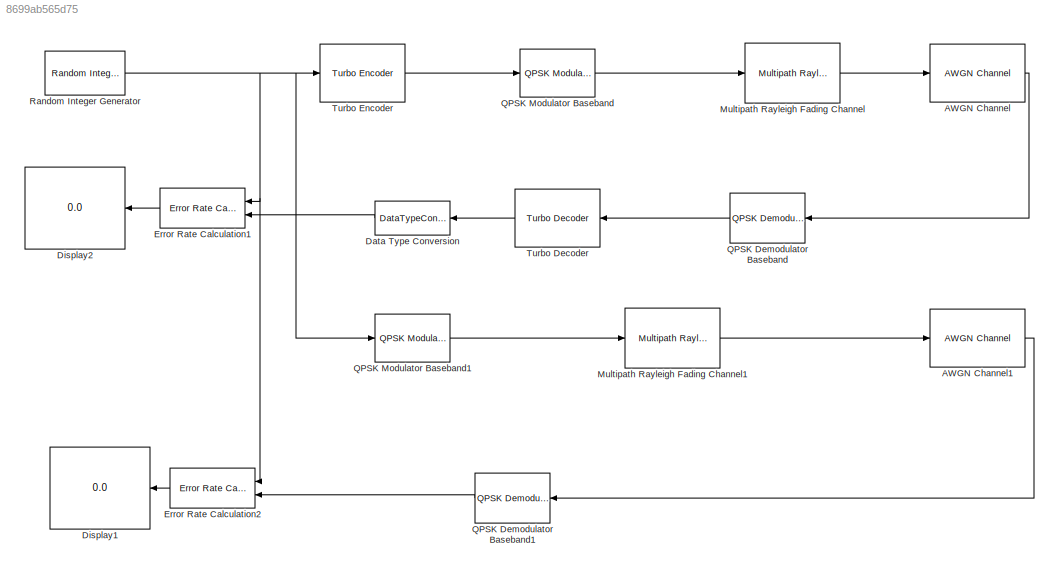
MODEL slx_8699ab565d75
KIND model
CONFIG AbsTol = auto
CONFIG FixedStep = auto
CONFIG MaxStep = auto
CONFIG MinStep = auto
CONFIG RelTol = 1e-3
CONFIG SampleTimeConstraint = Unconstrained
CONFIG Solver = ode45
CONFIG SolverMode = Auto
CONFIG SolverName = ode45
CONFIG StartTime = 0.0
CONFIG StopTime = 10.0
BLOCK [Reference] AWGN Channel  REF=commchan3/AWGN
Channel
  EbNodB = 10
  EsNodB = 10
  InputProcessing = Columns as channels (frame based)
  Ports = [1, 1]
  Ps = 1
  SNRdB = 10
  SourceBlock = commchan3/AWGN\nChannel
  SourceType = AWGN Channel
  Tsym = 1
  UserDataPersistent = on
  bitsPerSym = 1
  noiseMode = Signal to noise ratio  (Eb/No)
  seed = 67
  variance = 1
BLOCK [Reference] AWGN Channel1  REF=commchan3/AWGN
Channel
  EbNodB = 10
  EsNodB = 10
  InputProcessing = Columns as channels (frame based)
  Ports = [1, 1]
  Ps = 1
  SNRdB = 10
  SourceBlock = commchan3/AWGN\nChannel
  SourceType = AWGN Channel
  Tsym = 1
  UserDataPersistent = on
  bitsPerSym = 1
  noiseMode = Signal to noise ratio  (Eb/No)
  seed = 67
  variance = 1
BLOCK [DataTypeConversion] Data Type Conversion
  OutDataTypeStr = int8
  RndMeth = Floor
  SaturateOnIntegerOverflow = off
BLOCK [Display] Display1
  Decimation = 1
  Ports = [1]
BLOCK [Display] Display2
  Decimation = 1
  Ports = [1]
BLOCK [Reference] Error Rate Calculation1  REF=commsink2/Error Rate
Calculation
  N = 0
  PMode = Port
  Ports = [2, 1]
  RsMode2 = off
  SourceBlock = commsink2/Error Rate\nCalculation
  SourceType = Error Rate Calculation
  WsName = e2
  cp_mode = Entire frame
  maxBits = 1e6
  numErr = 100
  st_delay = 0
  stop = off
  subframe = []
BLOCK [Reference] Error Rate Calculation2  REF=commsink2/Error Rate
Calculation
  N = 0
  PMode = Port
  Ports = [2, 1]
  RsMode2 = off
  SourceBlock = commsink2/Error Rate\nCalculation
  SourceType = Error Rate Calculation
  WsName = e2
  cp_mode = Entire frame
  maxBits = 1e6
  numErr = 100
  st_delay = 0
  stop = off
  subframe = []
BLOCK [Reference] Multipath Rayleigh Fading Channel  REF=commchan3/Multipath Rayleigh
Fading Channel
  Ports = [1, 1]
  SourceBlock = commchan3/Multipath Rayleigh\nFading Channel
  SourceType = Multipath Rayleigh Fading Channel
  avgPathGaindB = [0 -3]
  centerFreqGaussian1 = 0.0
  centerFreqGaussian2 = 0.0
  coeffBell = 9
  coeffRounded = [1 -1.72 0.785]
  dopplerSpectrum = doppler.jakes
  enableProbe = 0
  freqMinMaxAJakes = [0 1]
  freqMinMaxRJakes = [0 1]
  gainGaussian1 = 0.5
  gainGaussian2 = 0.5
  maxDopplerShift = 40
  normalizePathGains = on
  openVisAtStart = off
  outDelay = off
  outPathGains = off
  pathDelays = [0 2e-6]
  seed = 73
  sigmaGaussian = 1/sqrt(2)
  sigmaGaussian1 = 1/sqrt(2)
  sigmaGaussian2 = 1/sqrt(2)
  spectrumType = Jakes
BLOCK [Reference] Multipath Rayleigh Fading Channel1  REF=commchan3/Multipath Rayleigh
Fading Channel
  Ports = [1, 1]
  SourceBlock = commchan3/Multipath Rayleigh\nFading Channel
  SourceType = Multipath Rayleigh Fading Channel
  avgPathGaindB = [0 -3]
  centerFreqGaussian1 = 0.0
  centerFreqGaussian2 = 0.0
  coeffBell = 9
  coeffRounded = [1 -1.72 0.785]
  dopplerSpectrum = doppler.jakes
  enableProbe = 0
  freqMinMaxAJakes = [0 1]
  freqMinMaxRJakes = [0 1]
  gainGaussian1 = 0.5
  gainGaussian2 = 0.5
  maxDopplerShift = 40
  normalizePathGains = on
  openVisAtStart = off
  outDelay = off
  outPathGains = off
  pathDelays = [0 2e-6]
  seed = 73
  sigmaGaussian = 1/sqrt(2)
  sigmaGaussian1 = 1/sqrt(2)
  sigmaGaussian2 = 1/sqrt(2)
  spectrumType = Jakes
BLOCK [Reference] QPSK Demodulator Baseband  REF=commdigbbndpm3/QPSK
Demodulator
Baseband
  Dec = Gray
  DecType = Hard decision
  OutType = Integer
  Ph = pi/4
  Ports = [1, 1]
  SourceBlock = commdigbbndpm3/QPSK\nDemodulator\nBaseband
  SourceType = QPSK Demodulator Baseband
  VarSource = Dialog
  Variance = 1
  derotateFactorDTMode = Same word length as input
  derotateFactorWordLen = 16
  outDtype1 = Inherit via internal rule
  outDtype2 = double
BLOCK [Reference] QPSK Demodulator Baseband1  REF=commdigbbndpm3/QPSK
Demodulator
Baseband
  Dec = Gray
  DecType = Hard decision
  OutType = Integer
  Ph = pi/4
  Ports = [1, 1]
  SourceBlock = commdigbbndpm3/QPSK\nDemodulator\nBaseband
  SourceType = QPSK Demodulator Baseband
  VarSource = Dialog
  Variance = 1
  derotateFactorDTMode = Same word length as input
  derotateFactorWordLen = 16
  outDtype1 = Inherit via internal rule
  outDtype2 = int8
BLOCK [Reference] QPSK Modulator Baseband  REF=commdigbbndpm3/QPSK
Modulator
Baseband
  Enc = Gray
  InType = Integer
  Ph = pi/4
  Ports = [1, 1]
  SourceBlock = commdigbbndpm3/QPSK\nModulator\nBaseband
  SourceType = QPSK Modulator Baseband
  outDtype = double
  outFracLen = 15
  outFracLenMode = Best precision
  outUDDataType = sfix(16)
  outWordLen = 16
BLOCK [Reference] QPSK Modulator Baseband1  REF=commdigbbndpm3/QPSK
Modulator
Baseband
  Enc = Gray
  InType = Integer
  Ph = pi/4
  Ports = [1, 1]
  SourceBlock = commdigbbndpm3/QPSK\nModulator\nBaseband
  SourceType = QPSK Modulator Baseband
  outDtype = double
  outFracLen = 15
  outFracLenMode = Best precision
  outUDDataType = sfix(16)
  outWordLen = 16
BLOCK [Reference] Random Integer Generator  REF=commrandsrc2/Random Integer
Generator
  Ports = [0, 1]
  SourceBlock = commrandsrc2/Random Integer\nGenerator
  SourceType = Random Integer Generator
  Ts = 1/10000
  frameBased = on
  mul = 2
  orient = off
  outDataType = int8
  sampPerFrame = 64
  seed = 37
BLOCK [Reference] Turbo Decoder  REF=commcnvcod2/Turbo Decoder
  Algorithm = True APP
  InterleaverIndices = (64:-1:1).'
  InterleaverIndicesSource = Property
  NumIterations = 6
  NumScalingBits = 3
  Ports = [1, 1]
  SimulateUsing = Interpreted execution
  SourceBlock = commcnvcod2/Turbo Decoder
  SourceType = Turbo Decoder
  TrellisStructure = poly2trellis( 4, [ 13, 15 ], 13 )
BLOCK [Reference] Turbo Encoder  REF=commcnvcod2/Turbo Encoder
  InterleaverIndices = (64:-1:1).'
  InterleaverIndicesSource = Property
  Ports = [1, 1]
  SimulateUsing = Interpreted execution
  SourceBlock = commcnvcod2/Turbo Encoder
  SourceType = Turbo Encoder
  TrellisStructure = poly2trellis( 4, [ 13, 15 ], 13 )
LINE AWGN Channel1:1 -> QPSK Demodulator Baseband1:1
LINE AWGN Channel:1 -> QPSK Demodulator Baseband:1
LINE Data Type Conversion:1 -> Error Rate Calculation1:2
LINE Error Rate Calculation1:1 -> Display2:1
LINE Error Rate Calculation2:1 -> Display1:1
LINE Multipath Rayleigh Fading Channel1:1 -> AWGN Channel1:1
LINE Multipath Rayleigh Fading Channel:1 -> AWGN Channel:1
LINE QPSK Demodulator Baseband1:1 -> Error Rate Calculation2:2
LINE QPSK Demodulator Baseband:1 -> Turbo Decoder:1
LINE QPSK Modulator Baseband1:1 -> Multipath Rayleigh Fading Channel1:1
LINE QPSK Modulator Baseband:1 -> Multipath Rayleigh Fading Channel:1
NET Random Integer Generator:1 -> Error Rate Calculation1:1, Error Rate Calculation2:1, QPSK Modulator Baseband1:1, Turbo Encoder:1
LINE Turbo Decoder:1 -> Data Type Conversion:1
LINE Turbo Encoder:1 -> QPSK Modulator Baseband:1
note: NET lines group one-source signal fan-out (src -> all destinations, sorted); 1:1 wires keep LINE
